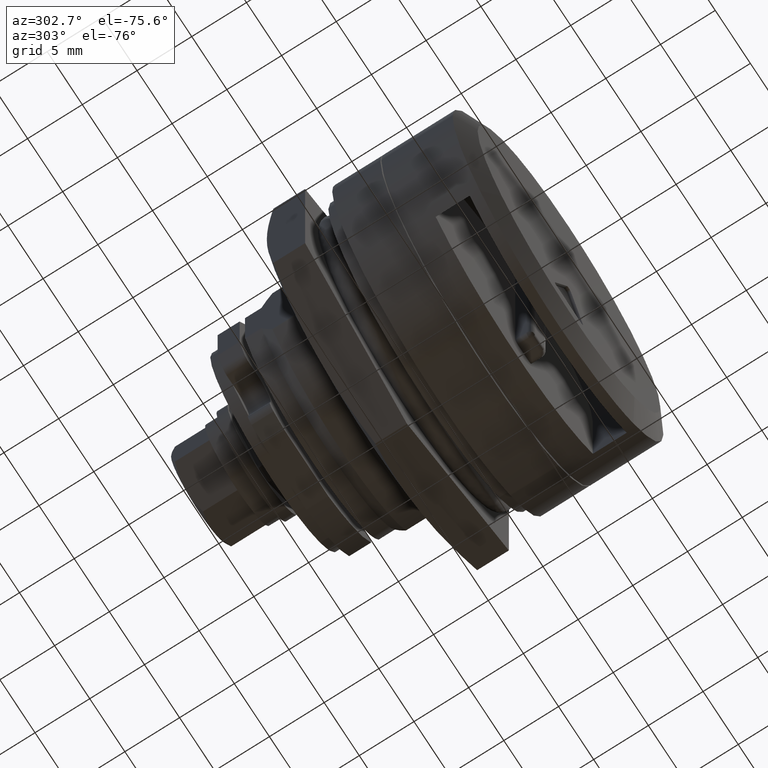
[diagram: clean part render]
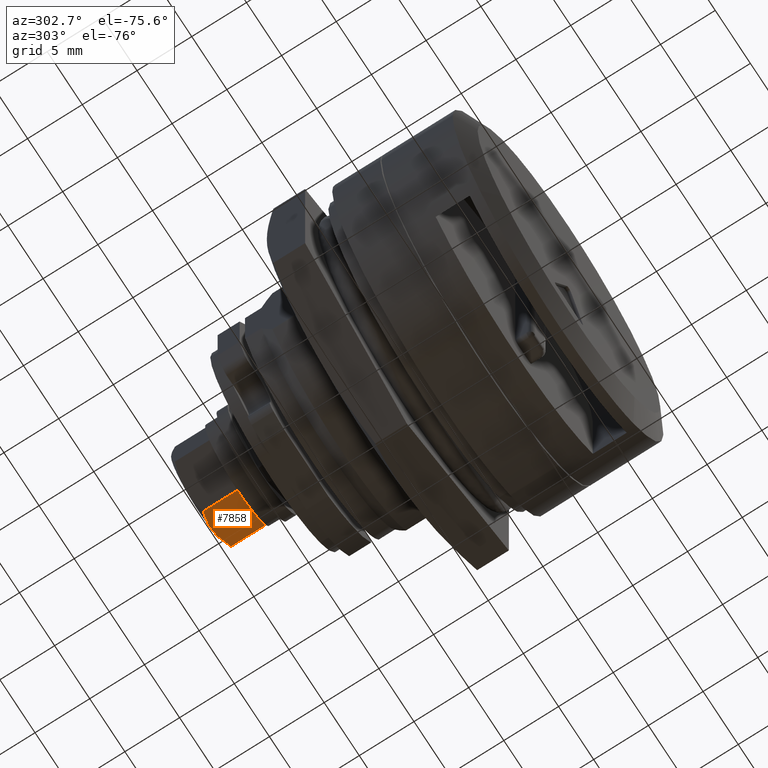
[diagram: same view with one face highlighted and labeled with its STEP entity id]
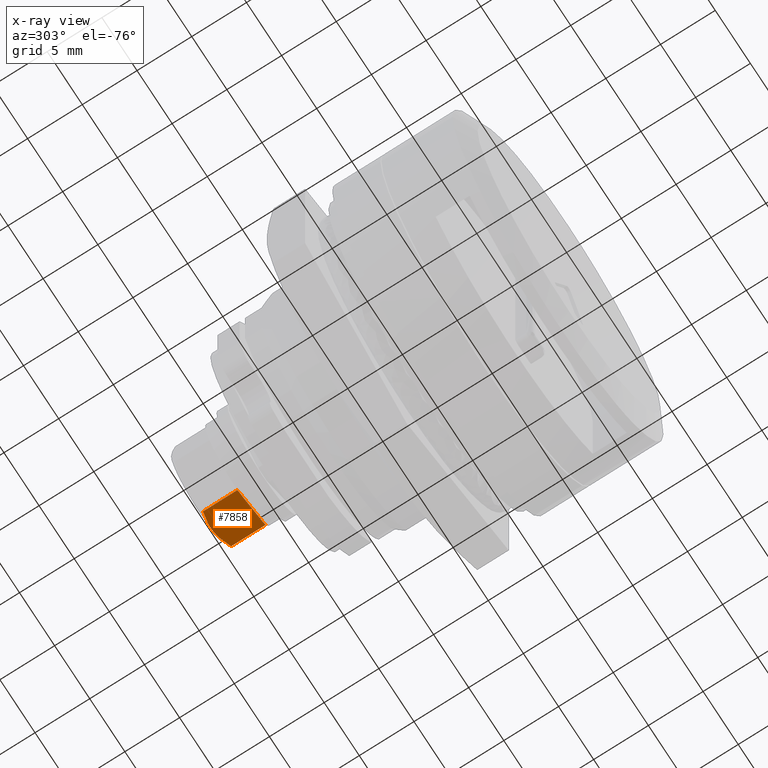
[diagram: x-ray of the same camera — body ghosted, the highlighted face saturated]
A machine part, auxiliary view. The second image highlights one B-rep face of the part: STEP entity #7858.
The next image is the same camera in x-ray: the body ghosted, the highlighted face saturated — about 0% of this face is hidden behind the body in this view.
In plain terms, the highlighted face is a freeform B-spline surface patch.
Its self-contained STEP definition (entity closure, byte-faithful):
#6841=CARTESIAN_POINT('',(92.421359999999993,-0.033121251725221,-4.599880757441810));
#6842=VERTEX_POINT('',#6841);
#6946=CARTESIAN_POINT('',(92.421359999999993,-3.966702670486539,-2.329220883461735));
#6947=VERTEX_POINT('',#6946);
#7704=CARTESIAN_POINT('',(92.421359999999993,-3.966702670486539,-2.329220883461735));
#7705=CARTESIAN_POINT('',(92.421359999999993,-0.033121251725221,-4.599880757441810));
#7706=QUASI_UNIFORM_CURVE('',1,(#7704,#7705),.UNSPECIFIED.,.F.,.U.);
#7707=EDGE_CURVE('',#6947,#6842,#7706,.T.);
#7805=CARTESIAN_POINT('',(92.246541098989823,-4.199615006731023,-2.194772237364603));
#7806=CARTESIAN_POINT('',(92.246541098989823,0.199791299086847,-4.734329527398090));
#7807=CARTESIAN_POINT('',(96.095972968235017,-4.199615006731023,-2.194772237364603));
#7808=CARTESIAN_POINT('',(96.095972968235017,0.199791299086847,-4.734329527398090));
#7809=B_SPLINE_SURFACE_WITH_KNOTS('',1,1,((#7805,#7807),(#7806,#7808)),.UNSPECIFIED.,.F.,.F.,.U.,(2,2),(2,2),(0.0,5.079776281789609),(0.0,3.849431869245195),.UNSPECIFIED.);
#7810=CARTESIAN_POINT('',(95.563980000000001,0.0,-4.619000000000201));
#7811=VERTEX_POINT('',#7810);
#7812=CARTESIAN_POINT('',(95.563980000000001,-3.999823922211450,-2.310101640903530));
#7813=VERTEX_POINT('',#7812);
#7814=CARTESIAN_POINT('',(95.563980000000001,0.0,-4.619000000000201));
#7815=CARTESIAN_POINT('',(95.672810844489263,-0.326549078155167,-4.430499544635122));
#7816=CARTESIAN_POINT('',(95.762505039078349,-0.655478432441390,-4.240625074873392));
#7817=CARTESIAN_POINT('',(95.886759034556036,-1.320194928662682,-3.856917477429632));
#7818=CARTESIAN_POINT('',(95.920909168377946,-1.656033026263744,-3.663054935589411));
#7819=CARTESIAN_POINT('',(95.921221955784574,-2.081101367834006,-3.417684235417963));
#7820=CARTESIAN_POINT('',(95.919182637523420,-2.166546021114230,-3.368361309311953));
#7821=CARTESIAN_POINT('',(95.910965644150778,-2.336661467722783,-3.270162167757160));
#7822=CARTESIAN_POINT('',(95.904797491160366,-2.421423700679965,-3.221233168782625));
#7823=CARTESIAN_POINT('',(95.880381415125512,-2.674862284371030,-3.074935746346950));
#7824=CARTESIAN_POINT('',(95.856208055548549,-2.842688537302571,-2.978058041842213));
#7825=CARTESIAN_POINT('',(95.762862658452278,-3.343179574048586,-2.689149590880563));
#7826=CARTESIAN_POINT('',(95.672946348016595,-3.672868263068910,-2.498836795143571));
#7827=CARTESIAN_POINT('',(95.563979999999958,-3.999823922211445,-2.310101640903533));
#7828=B_SPLINE_CURVE_WITH_KNOTS('',3,(#7814,#7815,#7816,#7817,#7818,#7819,#7820,#7821,#7822,#7823,#7824,#7825,#7826,#7827),.UNSPECIFIED.,.F.,.U.,(4,2,2,2,2,2,4),(0.0,0.250000000000000,0.499999999999999,0.562499999999999,0.624999999999999,0.749999999999999,1.0),.UNSPECIFIED.);
#7829=EDGE_CURVE('',#7811,#7813,#7828,.T.);
#7830=ORIENTED_EDGE('',*,*,#7829,.T.);
#7831=CARTESIAN_POINT('',(92.421359999999993,-3.999823922211450,-2.310101640903530));
#7832=VERTEX_POINT('',#7831);
#7833=CARTESIAN_POINT('',(95.563980000000001,-3.999823922211450,-2.310101640903530));
#7834=CARTESIAN_POINT('',(92.421359999999993,-3.999823922211450,-2.310101640903530));
#7835=QUASI_UNIFORM_CURVE('',1,(#7833,#7834),.UNSPECIFIED.,.F.,.U.);
#7836=EDGE_CURVE('',#7813,#7832,#7835,.T.);
#7837=ORIENTED_EDGE('',*,*,#7836,.T.);
#7838=CARTESIAN_POINT('',(92.421359999999993,-3.999823922211450,-2.310101640903530));
#7839=CARTESIAN_POINT('',(92.421359999999993,-3.966702670486539,-2.329220883461735));
#7840=QUASI_UNIFORM_CURVE('',1,(#7838,#7839),.UNSPECIFIED.,.F.,.U.);
#7841=EDGE_CURVE('',#7832,#6947,#7840,.T.);
#7842=ORIENTED_EDGE('',*,*,#7841,.T.);
#7843=ORIENTED_EDGE('',*,*,#7707,.T.);
#7844=CARTESIAN_POINT('',(92.421359999999993,0.0,-4.619000000000201));
#7845=VERTEX_POINT('',#7844);
#7846=CARTESIAN_POINT('',(92.421359999999993,-0.033121251725221,-4.599880757441810));
#7847=CARTESIAN_POINT('',(92.421359999999993,0.0,-4.619000000000201));
#7848=QUASI_UNIFORM_CURVE('',1,(#7846,#7847),.UNSPECIFIED.,.F.,.U.);
#7849=EDGE_CURVE('',#6842,#7845,#7848,.T.);
#7850=ORIENTED_EDGE('',*,*,#7849,.T.);
#7851=CARTESIAN_POINT('',(92.421359999999993,0.0,-4.619000000000201));
#7852=CARTESIAN_POINT('',(95.563980000000001,0.0,-4.619000000000201));
#7853=QUASI_UNIFORM_CURVE('',1,(#7851,#7852),.UNSPECIFIED.,.F.,.U.);
#7854=EDGE_CURVE('',#7845,#7811,#7853,.T.);
#7855=ORIENTED_EDGE('',*,*,#7854,.T.);
#7856=EDGE_LOOP('',(#7830,#7837,#7842,#7843,#7850,#7855));
#7857=FACE_OUTER_BOUND('',#7856,.T.);
#7858=ADVANCED_FACE('',(#7857),#7809,.T.);